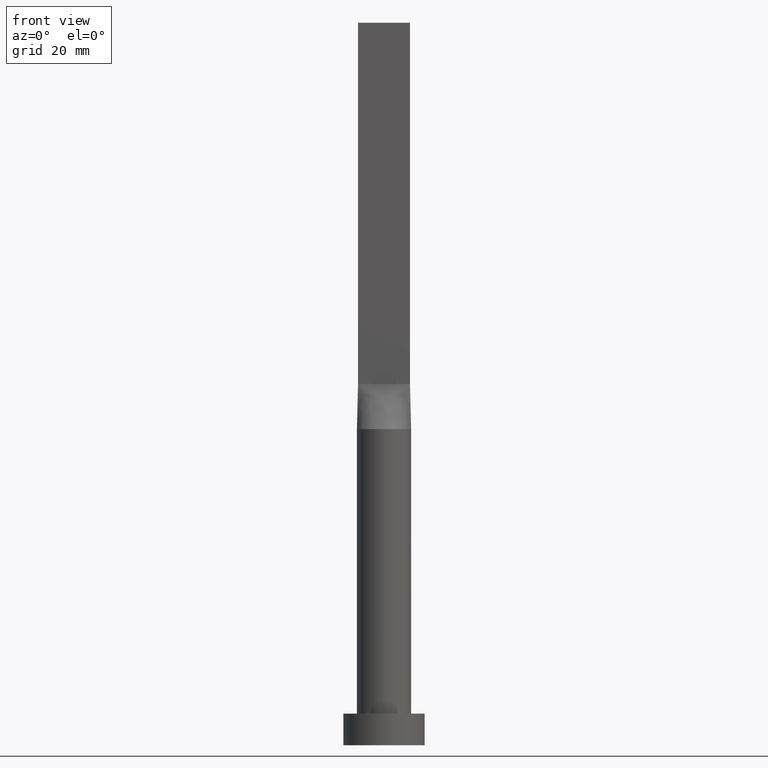
[diagram: clean part render]
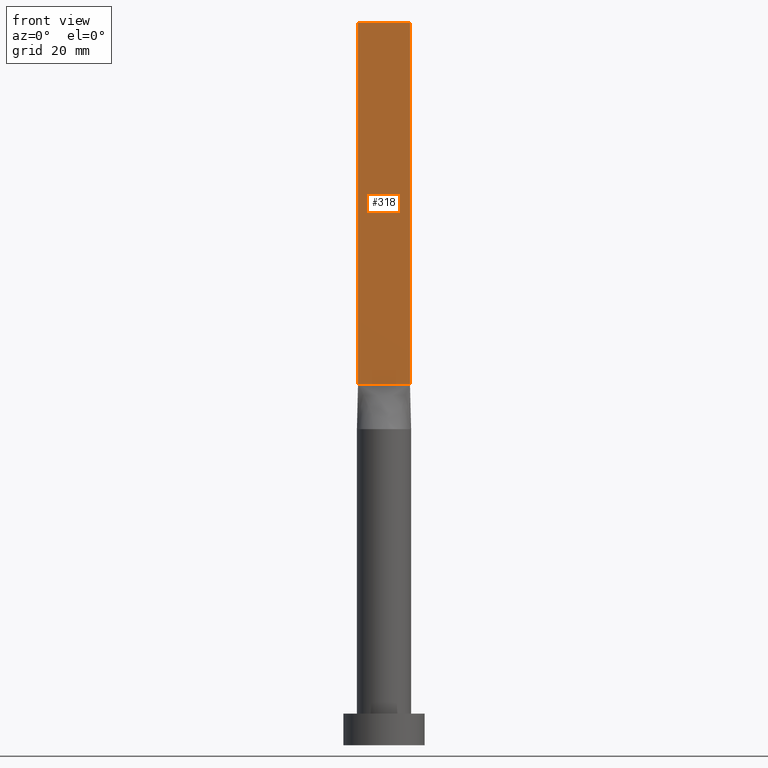
[diagram: same view with one face highlighted and labeled with its STEP entity id]
A machine part, front view. The second image highlights one B-rep face of the part: STEP entity #318.
In plain terms, the highlighted planar face has unit normal (0, 1, -0).
Its self-contained STEP definition (entity closure, byte-faithful):
#23 = FACE_OUTER_BOUND ( 'NONE', #138, .T. ) ;
#25 = DIRECTION ( 'NONE',  ( 1.000000000000000000, -5.656706986880892860E-17, 0.000000000000000000 ) ) ;
#31 = DIRECTION ( 'NONE',  ( -1.000000000000000000, 5.656706986880892860E-17, 0.000000000000000000 ) ) ;
#54 = CARTESIAN_POINT ( 'NONE',  ( -5.750000000000000000, -1.249999999999999112, 160.0000000000000000 ) ) ;
#57 = VECTOR ( 'NONE', #552, 1000.000000000000000 ) ;
#81 = PLANE ( 'NONE',  #315 ) ;
#94 = VECTOR ( 'NONE', #559, 1000.000000000000000 ) ;
#100 = VECTOR ( 'NONE', #25, 1000.000000000000000 ) ;
#103 = EDGE_CURVE ( 'NONE', #275, #291, #424, .T. ) ;
#116 = DIRECTION ( 'NONE',  ( 5.656706986880892860E-17, 1.000000000000000000, -0.000000000000000000 ) ) ;
#123 = CARTESIAN_POINT ( 'NONE',  ( -5.750000000000000000, -1.249999999999999112, 160.0000000000000000 ) ) ;
#138 = EDGE_LOOP ( 'NONE', ( #164, #483, #186, #441 ) ) ;
#148 = EDGE_CURVE ( 'NONE', #501, #275, #583, .T. ) ;
#157 = CARTESIAN_POINT ( 'NONE',  ( -5.750000000000000000, -1.249999999999999112, 80.00000000000000000 ) ) ;
#164 = ORIENTED_EDGE ( 'NONE', *, *, #103, .T. ) ;
#171 = DIRECTION ( 'NONE',  ( -0.000000000000000000, -0.000000000000000000, -1.000000000000000000 ) ) ;
#185 = CARTESIAN_POINT ( 'NONE',  ( 5.750000000000000000, -1.249999999999999778, 160.0000000000000000 ) ) ;
#186 = ORIENTED_EDGE ( 'NONE', *, *, #463, .F. ) ;
#275 = VERTEX_POINT ( 'NONE', #289 ) ;
#276 = LINE ( 'NONE', #412, #57 ) ;
#280 = CARTESIAN_POINT ( 'NONE',  ( 5.750000000000000000, -1.249999999999999778, 160.0000000000000000 ) ) ;
#286 = CARTESIAN_POINT ( 'NONE',  ( -5.750000000000000000, -1.249999999999999112, 160.0000000000000000 ) ) ;
#289 = CARTESIAN_POINT ( 'NONE',  ( -5.750000000000000000, -1.249999999999999112, 80.00000000000000000 ) ) ;
#291 = VERTEX_POINT ( 'NONE', #525 ) ;
#315 = AXIS2_PLACEMENT_3D ( 'NONE', #286, #116, #31 ) ;
#318 = ADVANCED_FACE ( 'NONE', ( #23 ), #81, .F. ) ;
#329 = LINE ( 'NONE', #280, #94 ) ;
#359 = VERTEX_POINT ( 'NONE', #185 ) ;
#384 = VECTOR ( 'NONE', #171, 1000.000000000000000 ) ;
#412 = CARTESIAN_POINT ( 'NONE',  ( -5.750000000000000000, -1.249999999999999112, 160.0000000000000000 ) ) ;
#415 = EDGE_CURVE ( 'NONE', #359, #291, #329, .T. ) ;
#424 = LINE ( 'NONE', #157, #100 ) ;
#441 = ORIENTED_EDGE ( 'NONE', *, *, #148, .T. ) ;
#463 = EDGE_CURVE ( 'NONE', #501, #359, #276, .T. ) ;
#483 = ORIENTED_EDGE ( 'NONE', *, *, #415, .F. ) ;
#501 = VERTEX_POINT ( 'NONE', #54 ) ;
#525 = CARTESIAN_POINT ( 'NONE',  ( 5.750000000000000000, -1.249999999999999778, 80.00000000000000000 ) ) ;
#552 = DIRECTION ( 'NONE',  ( 1.000000000000000000, -5.656706986880892860E-17, 0.000000000000000000 ) ) ;
#559 = DIRECTION ( 'NONE',  ( -0.000000000000000000, -0.000000000000000000, -1.000000000000000000 ) ) ;
#583 = LINE ( 'NONE', #123, #384 ) ;